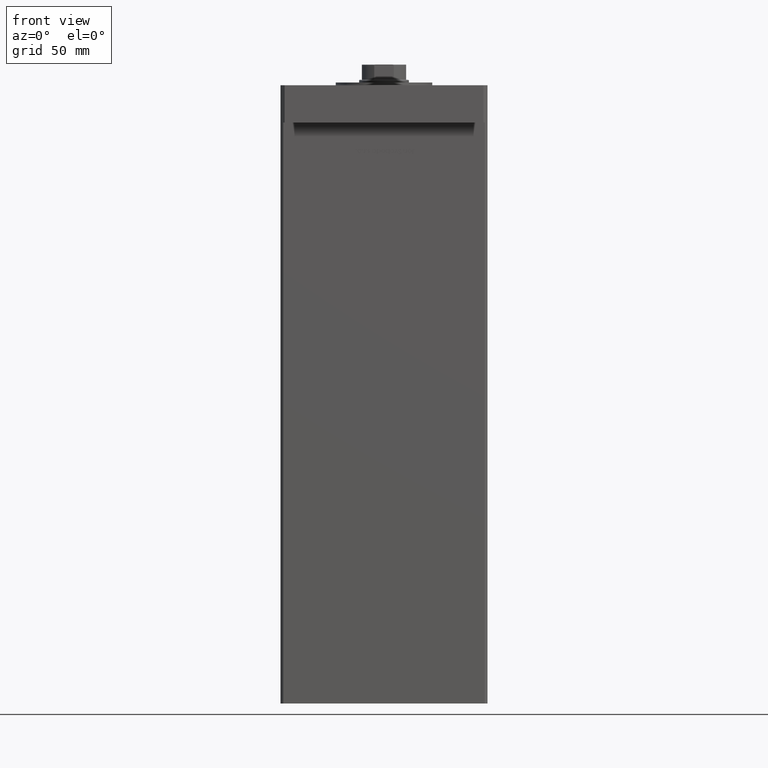
[diagram: clean part render]
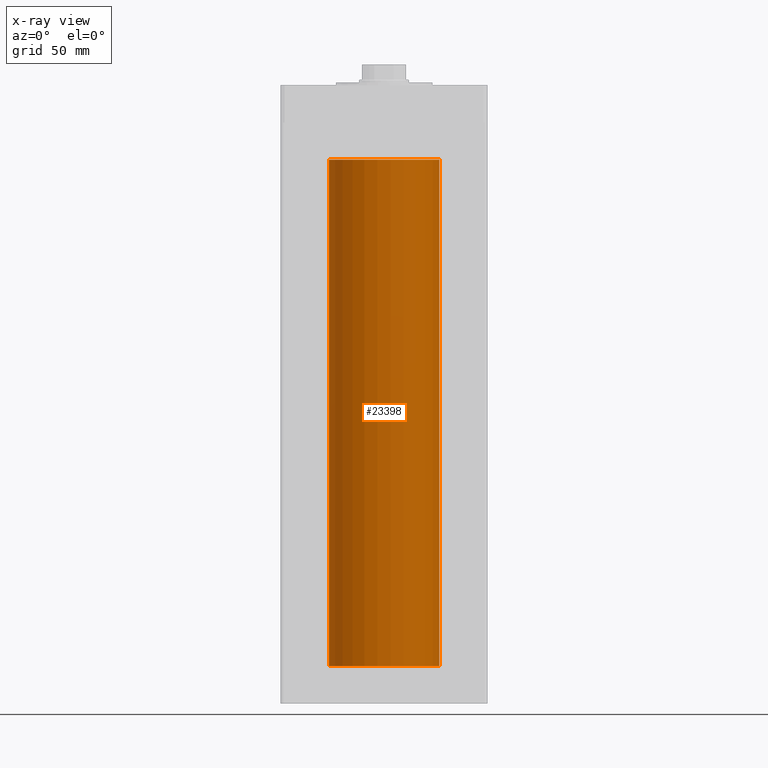
[diagram: x-ray — body ghosted, one internal face saturated and labeled with its STEP entity id]
A machine part, front view, then the same camera in x-ray: the body is ghosted and one INTERNAL B-rep face — a face not visible from any outside direction — is saturated and labeled: STEP entity #23398.
In plain terms, the highlighted cylindrical surface (partial cylindrical patch) has radius 40 mm, axis along (-0, -0, -1).
Its self-contained STEP definition (entity closure, byte-faithful):
#942 = VERTEX_POINT ( 'NONE', #10490 ) ;
#1422 = CIRCLE ( 'NONE', #33183, 40.00000000000000000 ) ;
#2563 = DIRECTION ( 'NONE',  ( -0.000000000000000000, 0.000000000000000000, 1.000000000000000000 ) ) ;
#2774 = EDGE_CURVE ( 'NONE', #47260, #942, #1422, .T. ) ;
#7843 = CARTESIAN_POINT ( 'NONE',  ( 40.00000000000000000, 4.898587196589413026E-15, 0.000000000000000000 ) ) ;
#8759 = ORIENTED_EDGE ( 'NONE', *, *, #10921, .T. ) ;
#10168 = AXIS2_PLACEMENT_3D ( 'NONE', #12064, #37079, #50999 ) ;
#10490 = CARTESIAN_POINT ( 'NONE',  ( 40.00000000000000000, 4.898587196589413026E-15, 367.0000000000000000 ) ) ;
#10921 = EDGE_CURVE ( 'NONE', #942, #35312, #44792, .T. ) ;
#11056 = AXIS2_PLACEMENT_3D ( 'NONE', #49484, #23582, #40930 ) ;
#11657 = CARTESIAN_POINT ( 'NONE',  ( 0.000000000000000000, 0.000000000000000000, 367.0000000000000000 ) ) ;
#12064 = CARTESIAN_POINT ( 'NONE',  ( 0.000000000000000000, 0.000000000000000000, 0.000000000000000000 ) ) ;
#14402 = EDGE_CURVE ( 'NONE', #47260, #30112, #21176, .T. ) ;
#17200 = CARTESIAN_POINT ( 'NONE',  ( -40.00000000000000000, 0.000000000000000000, 367.0000000000000000 ) ) ;
#17740 = EDGE_LOOP ( 'NONE', ( #20770, #8759, #52518, #50170 ) ) ;
#18788 = CARTESIAN_POINT ( 'NONE',  ( -40.00000000000000000, 0.000000000000000000, 367.0000000000000000 ) ) ;
#20770 = ORIENTED_EDGE ( 'NONE', *, *, #2774, .T. ) ;
#21176 = LINE ( 'NONE', #17200, #35222 ) ;
#23398 = ADVANCED_FACE ( 'NONE', ( #27573 ), #54000, .F. ) ;
#23582 = DIRECTION ( 'NONE',  ( -0.000000000000000000, -0.000000000000000000, -1.000000000000000000 ) ) ;
#26569 = EDGE_CURVE ( 'NONE', #30112, #35312, #52790, .T. ) ;
#27573 = FACE_OUTER_BOUND ( 'NONE', #17740, .T. ) ;
#30112 = VERTEX_POINT ( 'NONE', #52124 ) ;
#33183 = AXIS2_PLACEMENT_3D ( 'NONE', #11657, #2563, #37787 ) ;
#34538 = DIRECTION ( 'NONE',  ( -0.000000000000000000, -0.000000000000000000, -1.000000000000000000 ) ) ;
#35222 = VECTOR ( 'NONE', #34538, 1000.000000000000000 ) ;
#35312 = VERTEX_POINT ( 'NONE', #7843 ) ;
#37079 = DIRECTION ( 'NONE',  ( -0.000000000000000000, 0.000000000000000000, 1.000000000000000000 ) ) ;
#37787 = DIRECTION ( 'NONE',  ( 1.000000000000000000, 0.000000000000000000, 0.000000000000000000 ) ) ;
#40532 = DIRECTION ( 'NONE',  ( -0.000000000000000000, -0.000000000000000000, -1.000000000000000000 ) ) ;
#40930 = DIRECTION ( 'NONE',  ( -1.000000000000000000, 0.000000000000000000, 0.000000000000000000 ) ) ;
#44514 = CARTESIAN_POINT ( 'NONE',  ( 40.00000000000000000, 4.898587196589413026E-15, 367.0000000000000000 ) ) ;
#44792 = LINE ( 'NONE', #44514, #55952 ) ;
#47260 = VERTEX_POINT ( 'NONE', #18788 ) ;
#49484 = CARTESIAN_POINT ( 'NONE',  ( 0.000000000000000000, 0.000000000000000000, 367.0000000000000000 ) ) ;
#50170 = ORIENTED_EDGE ( 'NONE', *, *, #14402, .F. ) ;
#50999 = DIRECTION ( 'NONE',  ( 1.000000000000000000, 0.000000000000000000, 0.000000000000000000 ) ) ;
#52124 = CARTESIAN_POINT ( 'NONE',  ( -40.00000000000000000, 0.000000000000000000, 0.000000000000000000 ) ) ;
#52518 = ORIENTED_EDGE ( 'NONE', *, *, #26569, .F. ) ;
#52790 = CIRCLE ( 'NONE', #10168, 40.00000000000000000 ) ;
#54000 = CYLINDRICAL_SURFACE ( 'NONE', #11056, 40.00000000000000000 ) ;
#55952 = VECTOR ( 'NONE', #40532, 1000.000000000000000 ) ;